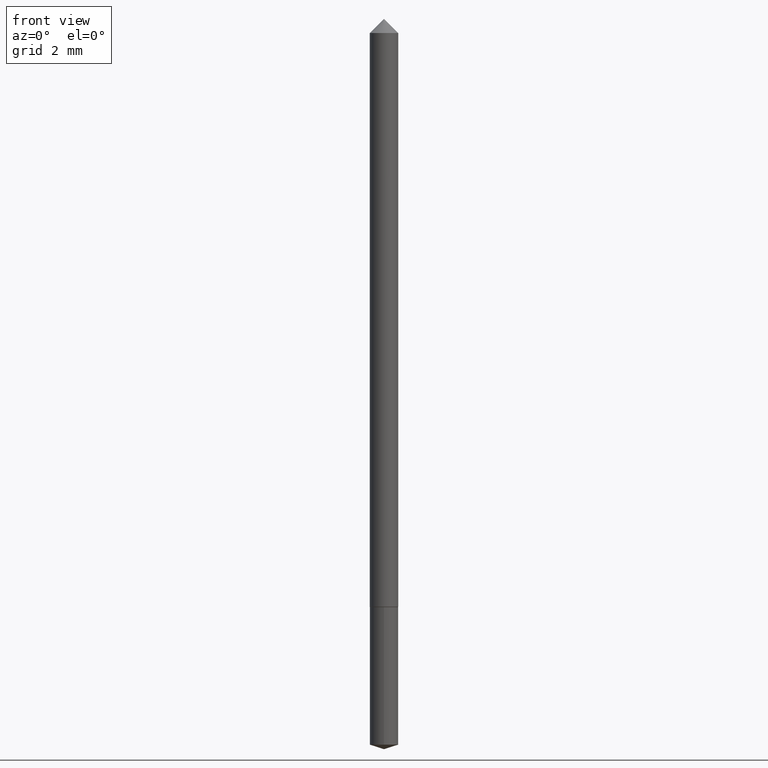
[diagram: clean part render]
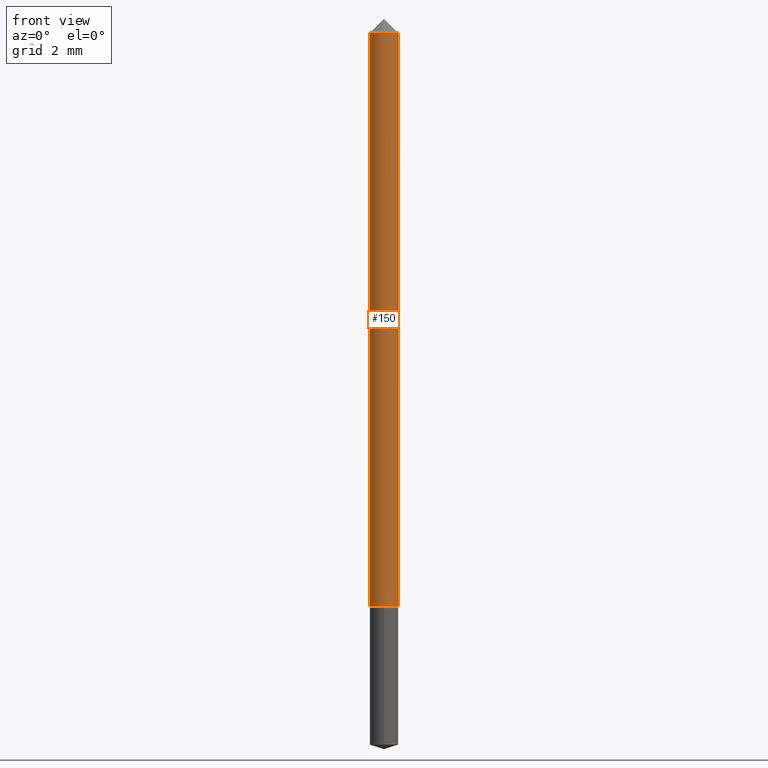
[diagram: same view with one face highlighted and labeled with its STEP entity id]
A machine part, front view. The second image highlights one B-rep face of the part: STEP entity #150.
In plain terms, the highlighted cylindrical surface (edge-blend (fillet) strip) has radius 0.5004 mm, axis along (-0, 0, 1).
Its self-contained STEP definition (entity closure, byte-faithful):
#4 = CARTESIAN_POINT ( 'NONE',  ( 0.000000000000000000, 0.000000000000000000, 0.000000000000000000 ) ) ;
#22 = EDGE_LOOP ( 'NONE', ( #222, #152, #215, #316 ) ) ;
#23 = AXIS2_PLACEMENT_3D ( 'NONE', #261, #156, #285 ) ;
#27 = CARTESIAN_POINT ( 'NONE',  ( -0.01970000000000009938, -2.745034111341350691E-15, -0.8263000000000000345 ) ) ;
#33 = DIRECTION ( 'NONE',  ( -2.445468806185136597E-29, 3.491481338843145583E-15, 1.000000000000000000 ) ) ;
#48 = DIRECTION ( 'NONE',  ( -2.445468806185136597E-29, 3.491481338843145583E-15, 1.000000000000000000 ) ) ;
#51 = LINE ( 'NONE', #272, #257 ) ;
#52 = VERTEX_POINT ( 'NONE', #127 ) ;
#55 = AXIS2_PLACEMENT_3D ( 'NONE', #4, #33, #65 ) ;
#65 = DIRECTION ( 'NONE',  ( 1.000000000000000000, -6.982962677686266711E-15, 4.876176775795936353E-29 ) ) ;
#83 = VERTEX_POINT ( 'NONE', #89 ) ;
#89 = CARTESIAN_POINT ( 'NONE',  ( -0.01970000000000000223, -1.357082992117728466E-15, -0.03125000000000020123 ) ) ;
#105 = DIRECTION ( 'NONE',  ( -2.445468806185136877E-29, 3.491481338843145188E-15, 1.000000000000000000 ) ) ;
#118 = CYLINDRICAL_SURFACE ( 'NONE', #55, 0.01970000000000004733 ) ;
#124 = EDGE_CURVE ( 'NONE', #83, #52, #158, .T. ) ;
#127 = CARTESIAN_POINT ( 'NONE',  ( 0.01970000000000000223, -2.466731565892684629E-16, -0.03125000000000020123 ) ) ;
#137 = CARTESIAN_POINT ( 'NONE',  ( 0.01970000000000009938, -3.022575395036511186E-15, -0.8263000000000000345 ) ) ;
#150 = ADVANCED_FACE ( 'NONE', ( #289 ), #118, .T. ) ;
#152 = ORIENTED_EDGE ( 'NONE', *, *, #348, .T. ) ;
#156 = DIRECTION ( 'NONE',  ( -2.445468806185136597E-29, 3.491481338843145583E-15, 1.000000000000000000 ) ) ;
#158 = CIRCLE ( 'NONE', #23, 0.01970000000000000223 ) ;
#166 = DIRECTION ( 'NONE',  ( 1.000000000000000000, -6.982962677686268288E-15, 0.000000000000000000 ) ) ;
#175 = VERTEX_POINT ( 'NONE', #137 ) ;
#190 = AXIS2_PLACEMENT_3D ( 'NONE', #354, #48, #166 ) ;
#193 = VERTEX_POINT ( 'NONE', #27 ) ;
#215 = ORIENTED_EDGE ( 'NONE', *, *, #328, .T. ) ;
#222 = ORIENTED_EDGE ( 'NONE', *, *, #291, .F. ) ;
#250 = CARTESIAN_POINT ( 'NONE',  ( 0.01970000000000004733, -1.375643647504197814E-16, 9.606068248318017740E-31 ) ) ;
#257 = VECTOR ( 'NONE', #105, 39.37007874015748143 ) ;
#261 = CARTESIAN_POINT ( 'NONE',  ( 7.642090019328601786E-31, -1.091087918388490144E-16, -0.03125000000000020123 ) ) ;
#272 = CARTESIAN_POINT ( 'NONE',  ( -0.01970000000000004733, 1.399769189447400729E-16, -9.690302127802188776E-31 ) ) ;
#282 = DIRECTION ( 'NONE',  ( -2.445468806185136877E-29, 3.491481338843145188E-15, 1.000000000000000000 ) ) ;
#285 = DIRECTION ( 'NONE',  ( 1.000000000000000000, -6.982962677686267499E-15, 0.000000000000000000 ) ) ;
#289 = FACE_OUTER_BOUND ( 'NONE', #22, .T. ) ;
#290 = CIRCLE ( 'NONE', #190, 0.01970000000000009938 ) ;
#291 = EDGE_CURVE ( 'NONE', #193, #83, #51, .T. ) ;
#316 = ORIENTED_EDGE ( 'NONE', *, *, #124, .F. ) ;
#318 = VECTOR ( 'NONE', #282, 39.37007874015748143 ) ;
#327 = LINE ( 'NONE', #250, #318 ) ;
#328 = EDGE_CURVE ( 'NONE', #175, #52, #327, .T. ) ;
#348 = EDGE_CURVE ( 'NONE', #193, #175, #290, .T. ) ;
#354 = CARTESIAN_POINT ( 'NONE',  ( 2.020690874550778472E-29, -2.885011030286090788E-15, -0.8263000000000000345 ) ) ;